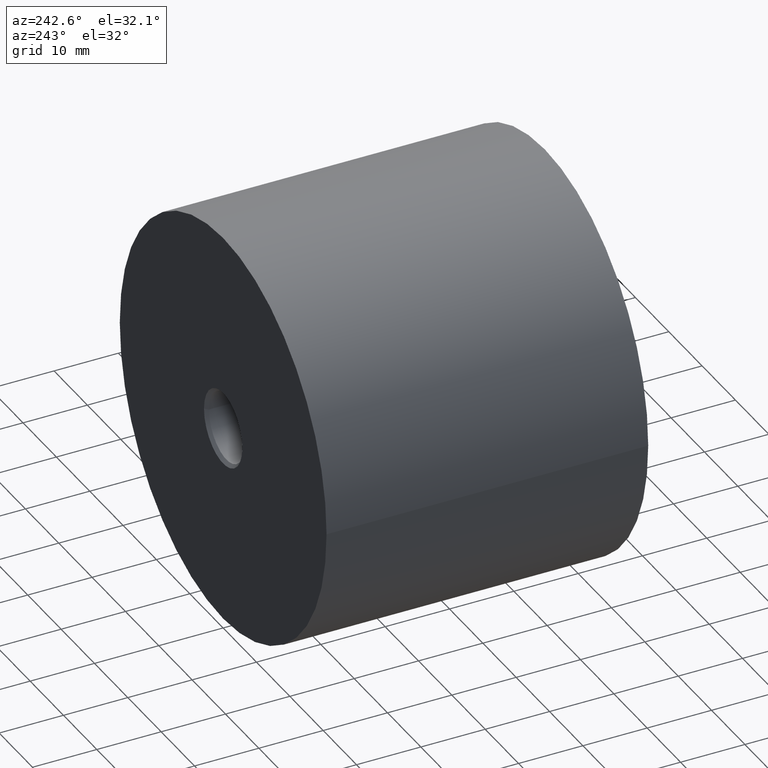
[diagram: clean part render]
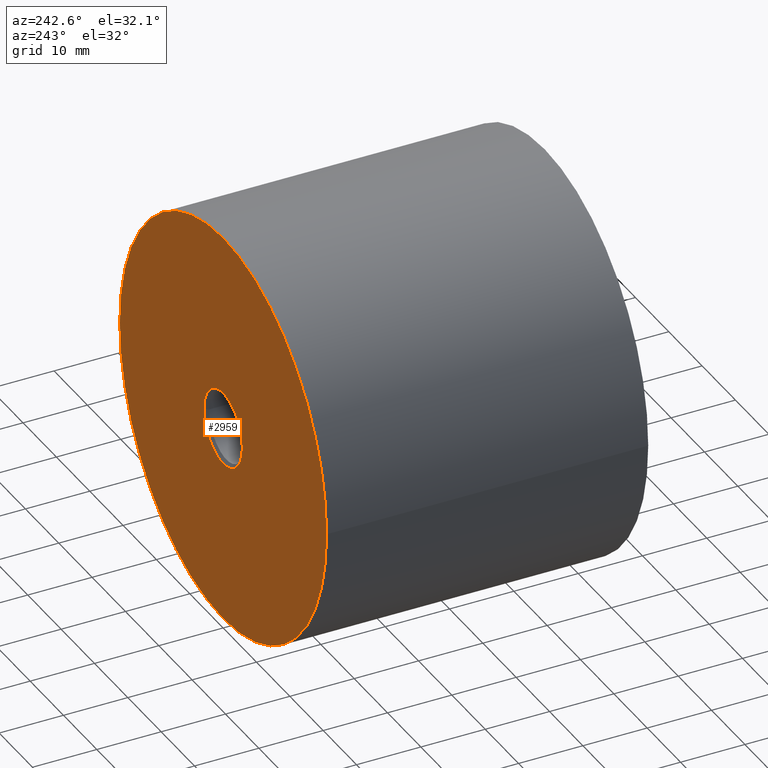
[diagram: same view with one face highlighted and labeled with its STEP entity id]
A machine part, auxiliary view. The second image highlights one B-rep face of the part: STEP entity #2959.
In plain terms, the highlighted planar face has unit normal (-0, 1, 0).
Its self-contained STEP definition (entity closure, byte-faithful):
#1 = CARTESIAN_POINT ( 'NONE',  ( -31.00000000000001776, 50.00000000000000000, 0.000000000000000000 ) ) ;
#1275 = DIRECTION ( 'NONE',  ( -1.000000000000000000, -1.387778780781445676E-16, 0.000000000000000000 ) ) ;
#2528 = ORIENTED_EDGE ( 'NONE', *, *, #7335, .T. ) ;
#2663 = CARTESIAN_POINT ( 'NONE',  ( -6.938893903907228378E-15, 50.00000000000000711, 0.000000000000000000 ) ) ;
#2692 = CARTESIAN_POINT ( 'NONE',  ( 5.749999999999992006, 50.00000000000000000, 7.041719095097279894E-16 ) ) ;
#2880 = ORIENTED_EDGE ( 'NONE', *, *, #8120, .F. ) ;
#2930 = CIRCLE ( 'NONE', #2937, 31.00000000000001066 ) ;
#2937 = AXIS2_PLACEMENT_3D ( 'NONE', #2663, #9403, #10718 ) ;
#2959 = ADVANCED_FACE ( 'NONE', ( #14433, #4961 ), #7049, .T. ) ;
#3326 = AXIS2_PLACEMENT_3D ( 'NONE', #5672, #6858, #12657 ) ;
#3893 = CARTESIAN_POINT ( 'NONE',  ( -31.00000000000001776, 50.00000000000000000, 0.000000000000000000 ) ) ;
#4601 = DIRECTION ( 'NONE',  ( -1.387778780781445676E-16, 1.000000000000000000, 0.000000000000000000 ) ) ;
#4796 = CARTESIAN_POINT ( 'NONE',  ( -6.938893903907228378E-15, 50.00000000000000711, 0.000000000000000000 ) ) ;
#4827 = VERTEX_POINT ( 'NONE', #2692 ) ;
#4961 = FACE_BOUND ( 'NONE', #13354, .T. ) ;
#5292 = CARTESIAN_POINT ( 'NONE',  ( 31.00000000000000711, 50.00000000000001421, 3.796405077356796693E-15 ) ) ;
#5672 = CARTESIAN_POINT ( 'NONE',  ( -6.938893903907228378E-15, 50.00000000000000000, 0.000000000000000000 ) ) ;
#6071 = DIRECTION ( 'NONE',  ( -1.000000000000000000, -2.238352872228137184E-16, 0.000000000000000000 ) ) ;
#6230 = VERTEX_POINT ( 'NONE', #3893 ) ;
#6435 = AXIS2_PLACEMENT_3D ( 'NONE', #11845, #14048, #7216 ) ;
#6620 = AXIS2_PLACEMENT_3D ( 'NONE', #1, #4601, #1275 ) ;
#6858 = DIRECTION ( 'NONE',  ( -1.387778780781445676E-16, 1.000000000000000000, -0.000000000000000000 ) ) ;
#6999 = CARTESIAN_POINT ( 'NONE',  ( -5.750000000000004441, 50.00000000000000000, 0.000000000000000000 ) ) ;
#7049 = PLANE ( 'NONE',  #6620 ) ;
#7216 = DIRECTION ( 'NONE',  ( -1.000000000000000000, 0.000000000000000000, 0.000000000000000000 ) ) ;
#7335 = EDGE_CURVE ( 'NONE', #12689, #6230, #2930, .T. ) ;
#7517 = EDGE_CURVE ( 'NONE', #6230, #12689, #9281, .T. ) ;
#8120 = EDGE_CURVE ( 'NONE', #12158, #4827, #12723, .T. ) ;
#9028 = EDGE_CURVE ( 'NONE', #4827, #12158, #13088, .T. ) ;
#9281 = CIRCLE ( 'NONE', #11207, 31.00000000000001066 ) ;
#9403 = DIRECTION ( 'NONE',  ( -1.387778780781445676E-16, 1.000000000000000000, -0.000000000000000000 ) ) ;
#10718 = DIRECTION ( 'NONE',  ( -1.000000000000000000, -2.238352872228137184E-16, 0.000000000000000000 ) ) ;
#11207 = AXIS2_PLACEMENT_3D ( 'NONE', #4796, #12988, #6071 ) ;
#11845 = CARTESIAN_POINT ( 'NONE',  ( -6.938893903907228378E-15, 50.00000000000000000, 0.000000000000000000 ) ) ;
#12098 = ORIENTED_EDGE ( 'NONE', *, *, #9028, .F. ) ;
#12158 = VERTEX_POINT ( 'NONE', #6999 ) ;
#12526 = ORIENTED_EDGE ( 'NONE', *, *, #7517, .T. ) ;
#12657 = DIRECTION ( 'NONE',  ( -1.000000000000000000, 0.000000000000000000, 0.000000000000000000 ) ) ;
#12689 = VERTEX_POINT ( 'NONE', #5292 ) ;
#12723 = CIRCLE ( 'NONE', #3326, 5.749999999999998224 ) ;
#12988 = DIRECTION ( 'NONE',  ( -1.387778780781445676E-16, 1.000000000000000000, -0.000000000000000000 ) ) ;
#13088 = CIRCLE ( 'NONE', #6435, 5.749999999999998224 ) ;
#13354 = EDGE_LOOP ( 'NONE', ( #2880, #12098 ) ) ;
#13984 = EDGE_LOOP ( 'NONE', ( #12526, #2528 ) ) ;
#14048 = DIRECTION ( 'NONE',  ( -1.387778780781445676E-16, 1.000000000000000000, -0.000000000000000000 ) ) ;
#14433 = FACE_OUTER_BOUND ( 'NONE', #13984, .T. ) ;